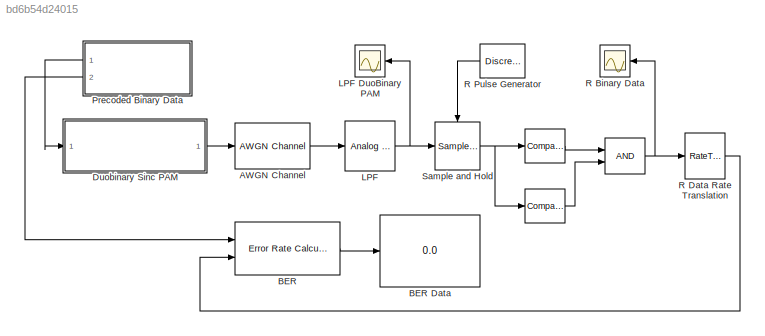
MODEL slx_bd6b54d24015
KIND model
BLOCK [Reference]    REF=simulink/Logic and Bit
Operations/Compare
To Constant
  OutDataTypeStr = boolean
  Ports = [1, 1]
  SourceBlock = simulink/Logic and Bit\nOperations/Compare\nTo Constant
  SourceType = Compare To Constant
  ZeroCross = off
  const = 5
  relop = <=
BLOCK [Reference]     REF=simulink/Logic and Bit
Operations/Compare
To Constant
  OutDataTypeStr = boolean
  Ports = [1, 1]
  SourceBlock = simulink/Logic and Bit\nOperations/Compare\nTo Constant
  SourceType = Compare To Constant
  ZeroCross = off
  const = -5
  relop = >=
BLOCK [Logic]    
  AllPortsSameDT = off
  OutDataTypeStr = boolean
  Ports = [2, 1]
BLOCK [Reference] AWGN Channel  REF=commchan3/AWGN
Channel
  EbNodB = 10
  EsNodB = 10
  InputProcessing = Inherited (this choice will be removed - see release notes)
  Ports = [1, 1]
  Ps = 1
  SNRdB = 10
  SourceBlock = commchan3/AWGN\nChannel
  SourceType = AWGN Channel
  Tsym = 1
  UserDataPersistent = on
  bitsPerSym = 1
  noiseMode = Variance from mask
  seed = randseed
  variance = 0
BLOCK [Reference] BER  REF=commsink2/Error Rate
Calculation
  N = 8
  PMode = Port
  Ports = [2, 1]
  RsMode2 = off
  SourceBlock = commsink2/Error Rate\nCalculation
  SourceType = Error Rate Calculation
  WsName = ErrorVec
  cp_mode = Entire frame
  maxBits = 1e6
  numErr = 100
  st_delay = 1
  stop = off
  subframe = []
BLOCK [Display] BER Data
  Decimation = 1
  Format = long
  Ports = [1]
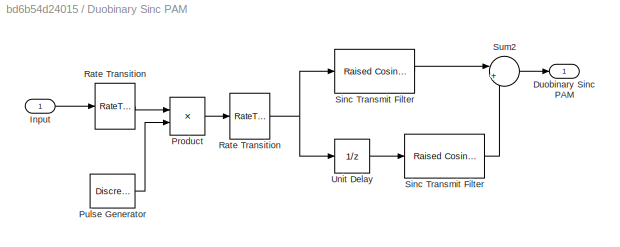
BLOCK [SubSystem] Duobinary Sinc PAM
  Ports = [1, 1]
  RequestExecContextInheritance = off
BLOCK [RateTransition] Duobinary Sinc PAM/ Rate Transition
  OutPortSampleTime = 1e-3
BLOCK [Outport] Duobinary Sinc PAM/Duobinary Sinc PAM
  IconDisplay = Port number
BLOCK [Inport] Duobinary Sinc PAM/Input
  IconDisplay = Port number
BLOCK [Product] Duobinary Sinc PAM/Product
  InputSameDT = off
  OutDataTypeStr = Inherit: Inherit via internal rule
  Ports = [2, 1]
  SaturateOnIntegerOverflow = off
BLOCK [DiscretePulseGenerator] Duobinary Sinc PAM/Pulse Generator
  Period = 1e-3
  Ports = [0, 1]
  PulseType = Time based
  PulseWidth = 2
BLOCK [RateTransition] Duobinary Sinc PAM/Rate Transition
  OutPortSampleTime = 2e-5
BLOCK [Reference] Duobinary Sinc PAM/Sinc Transmit Filter  REF=commfilt2/Raised Cosine
Transmit Filter
  D = 4
  InputProcessing = Inherited (this choice will be removed - see release notes)
  LockScale = off
  N = 50
  Ports = [1, 1]
  R = 0
  SourceBlock = commfilt2/Raised Cosine\nTransmit Filter
  SourceType = Raised Cosine Transmit Filter
  UserDataPersistent = on
  accumFracLength = 30
  accumMode = Inherit via internal rule
  accumWordLength = 32
  checkCoeff = off
  checkGain = User-specified
  coeffFracLength = 15
  coeffMode = Same word length as input
  coeffWordLength = 16
  currentFiltSpan = 2*(4)
  filtSpan = 2*(4)
  filtType = Normal
  filterGain = (5)*rcfiltgaincompat(gcbh)
  framing = Maintain input frame size
  launchFVT = off
  outputFracLength = 15
  outputMode = Same as accumulator
  outputWordLength = 16
  overflowMode = off
  prodOutputFracLength = 30
  prodOutputMode = Inherit via internal rule
  prodOutputWordLength = 32
  roundingMode = Floor
  sampMode = Mute
  saveAsFlag = 0
  variableName = rcTxFilt
BLOCK [Reference] Duobinary Sinc PAM/Sinc Transmit Filter   REF=commfilt2/Raised Cosine
Transmit Filter
  D = 4
  InputProcessing = Inherited (this choice will be removed - see release notes)
  LockScale = off
  N = 50
  Ports = [1, 1]
  R = 0
  SourceBlock = commfilt2/Raised Cosine\nTransmit Filter
  SourceType = Raised Cosine Transmit Filter
  UserDataPersistent = on
  accumFracLength = 30
  accumMode = Inherit via internal rule
  accumWordLength = 32
  checkCoeff = off
  checkGain = User-specified
  coeffFracLength = 15
  coeffMode = Same word length as input
  coeffWordLength = 16
  currentFiltSpan = 2*(4)
  filtSpan = 2*(4)
  filtType = Normal
  filterGain = (5)*rcfiltgaincompat(gcbh)
  framing = Maintain input frame size
  launchFVT = off
  outputFracLength = 15
  outputMode = Same as accumulator
  outputWordLength = 16
  overflowMode = off
  prodOutputFracLength = 30
  prodOutputMode = Inherit via internal rule
  prodOutputWordLength = 32
  roundingMode = Floor
  sampMode = Mute
  saveAsFlag = 0
  variableName = rcTxFilt1
BLOCK [Sum] Duobinary Sinc PAM/Sum2
  IconShape = round
  InputSameDT = off
  Inputs = |++
  OutDataTypeStr = Inherit: Inherit via internal rule
  Ports = [2, 1]
  SaturateOnIntegerOverflow = off
BLOCK [UnitDelay] Duobinary Sinc PAM/Unit Delay
  SampleTime = -1
BLOCK [Reference] LPF  REF=dsparch4/Analog
Filter Design
  N = 9
  Ports = [1, 1]
  Rp = 0.1
  Rs = 40
  SourceBlock = dsparch4/Analog\nFilter Design
  SourceType = Analog Filter Design
  Whi = 80
  Wlo = 2*pi*600
  filttype = Lowpass
  method = Chebyshev I
BLOCK [Scope] LPF DuoBinary PAM
  DataFormat = StructureWithTime
  Floating = off
  LimitDataPoints = off
  NumInputPorts = 1
  Ports = [1]
  SampleTime = 0
  SaveName = ScopeData2
  ShowLegends = off
  TimeRange = 0.05
  YMax = 8
  YMin = -8
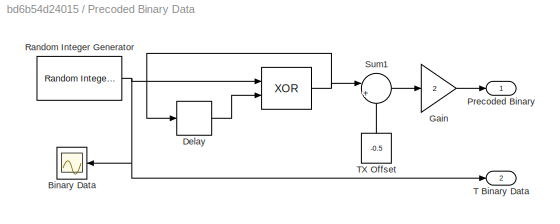
BLOCK [SubSystem] Precoded Binary Data
  Ports = [0, 2]
  RequestExecContextInheritance = off
BLOCK [Logic] Precoded Binary Data/  
  AllPortsSameDT = off
  Operator = XOR
  OutDataTypeStr = boolean
  Ports = [2, 1]
BLOCK [Scope] Precoded Binary Data/Binary Data
  DataFormat = StructureWithTime
  Floating = off
  LimitDataPoints = off
  NumInputPorts = 1
  Ports = [1]
  SampleTime = 0
  SaveName = ScopeData3
  ShowLegends = off
  TimeRange = 0.05
  YMax = 2
  YMin = -2
BLOCK [Delay] Precoded Binary Data/Delay 
  DelayLength = 1
  InputPortMap = u0
  InputProcessing = Inherited
  Ports = [1, 1]
BLOCK [Gain] Precoded Binary Data/Gain
  Gain = 2
  OutDataTypeStr = Inherit: Inherit via internal rule
  ParamDataTypeStr = Inherit: Inherit via internal rule
  SaturateOnIntegerOverflow = off
BLOCK [Outport] Precoded Binary Data/Precoded Binary
  IconDisplay = Port number
BLOCK [Reference] Precoded Binary Data/Random Integer Generator  REF=commrandsrc2/Random Integer
Generator
  Ports = [0, 1]
  SourceBlock = commrandsrc2/Random Integer\nGenerator
  SourceType = Random Integer Generator
  Ts = 1e-3
  frameBased = off
  mul = 2
  orient = off
  outDataType = boolean
  sampPerFrame = 50
  seed = randseed
BLOCK [Sum] Precoded Binary Data/Sum1
  IconShape = round
  InputSameDT = off
  Inputs = |++
  OutDataTypeStr = Inherit: Inherit via internal rule
  Ports = [2, 1]
  SaturateOnIntegerOverflow = off
BLOCK [Outport] Precoded Binary Data/T Binary Data
  IconDisplay = Port number
  Port = 2
BLOCK [Constant] Precoded Binary Data/TX Offset
  Value = -0.5
BLOCK [Scope] R Binary Data
  DataFormat = StructureWithTime
  Floating = off
  LimitDataPoints = off
  NumInputPorts = 1
  Ports = [1]
  SampleTime = 0
  SaveName = ScopeData1
  ShowLegends = off
  TimeRange = 0.05
  YMax = 2
  YMin = -2
BLOCK [RateTransition] R Data Rate Translation
  OutPortSampleTime = 1e-3
BLOCK [DiscretePulseGenerator] R Pulse Generator
  Period = 1e-3
  Ports = [0, 1]
  PulseType = Time based
  PulseWidth = 2
BLOCK [Reference] Sample and Hold  REF=dspsigops/Sample
and Hold
  Ports = [1, 1, 0, 1]
  SourceBlock = dspsigops/Sample\nand Hold
  SourceType = Sample and Hold
  initCond = 0
  latchinput = off
  trig = Rising edge
NET    :1 -> R Binary Data:1, R Data Rate Translation:1
LINE   :1 ->    :2
LINE  :1 ->    :1
LINE AWGN Channel:1 -> LPF:1
LINE BER:1 -> BER Data:1
NET Duobinary Sinc PAM/ Rate Transition:1 -> Duobinary Sinc PAM/Sinc Transmit Filter:1, Duobinary Sinc PAM/Unit Delay:1
LINE Duobinary Sinc PAM/Input:1 -> Duobinary Sinc PAM/Rate Transition:1
LINE Duobinary Sinc PAM/Product:1 -> Duobinary Sinc PAM/ Rate Transition:1
LINE Duobinary Sinc PAM/Pulse Generator:1 -> Duobinary Sinc PAM/Product:2
LINE Duobinary Sinc PAM/Rate Transition:1 -> Duobinary Sinc PAM/Product:1
LINE Duobinary Sinc PAM/Sinc Transmit Filter :1 -> Duobinary Sinc PAM/Sum2:2
LINE Duobinary Sinc PAM/Sinc Transmit Filter:1 -> Duobinary Sinc PAM/Sum2:1
LINE Duobinary Sinc PAM/Sum2:1 -> Duobinary Sinc PAM/Duobinary Sinc PAM:1
LINE Duobinary Sinc PAM/Unit Delay:1 -> Duobinary Sinc PAM/Sinc Transmit Filter :1
LINE Duobinary Sinc PAM:1 -> AWGN Channel:1
NET LPF:1 -> LPF DuoBinary PAM:1, Sample and Hold:1
NET Precoded Binary Data/  :1 -> Precoded Binary Data/Delay :1, Precoded Binary Data/Sum1:1
LINE Precoded Binary Data/Delay :1 -> Precoded Binary Data/  :2
LINE Precoded Binary Data/Gain:1 -> Precoded Binary Data/Precoded Binary:1
NET Precoded Binary Data/Random Integer Generator:1 -> Precoded Binary Data/  :1, Precoded Binary Data/Binary Data:1, Precoded Binary Data/T Binary Data:1
LINE Precoded Binary Data/Sum1:1 -> Precoded Binary Data/Gain:1
LINE Precoded Binary Data/TX Offset:1 -> Precoded Binary Data/Sum1:2
LINE Precoded Binary Data:1 -> Duobinary Sinc PAM:1
LINE Precoded Binary Data:2 -> BER:1
LINE R Data Rate Translation:1 -> BER:2
LINE R Pulse Generator:1 -> Sample and Hold:trigger
NET Sample and Hold:1 ->   :1,  :1
note: NET lines group one-source signal fan-out (src -> all destinations, sorted); 1:1 wires keep LINE
